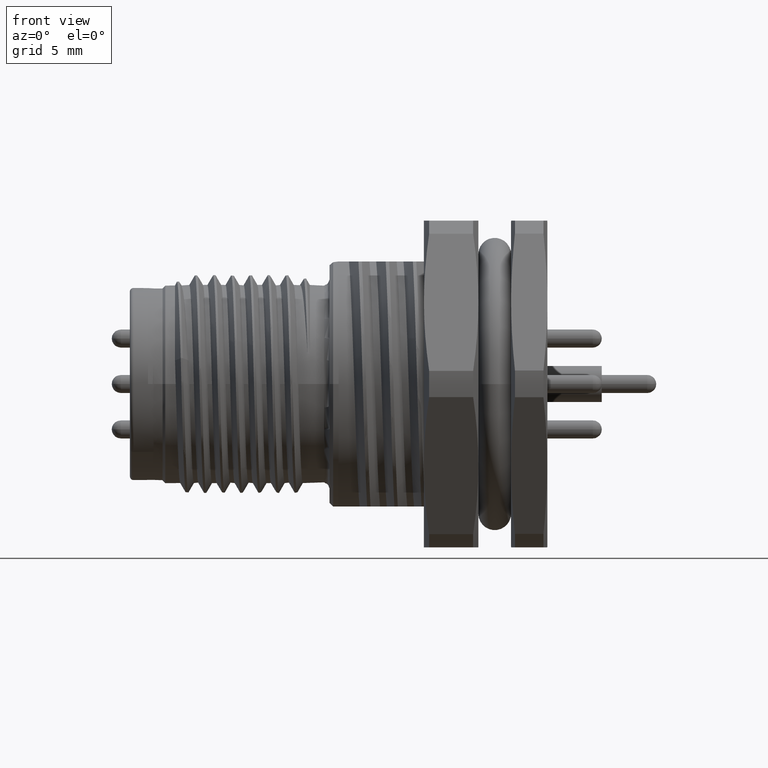
[diagram: clean part render]
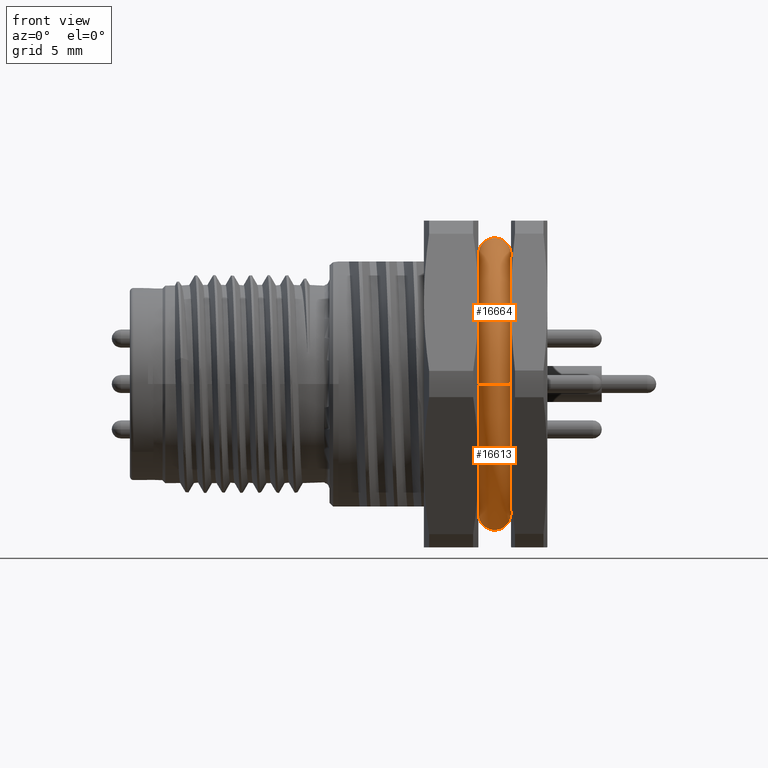
[diagram: same view with one multi-face feature highlighted, each face labeled with its STEP entity id]
A machine part, front view. The highlighted faces form ONE feature: a constant-radius fillet chain: 2 tangent blend faces with common blend radius 0.9 mm. The faces share edges in the B-rep.
Their STEP definitions:
[1] entity #16664 (Torus):
#2965=CARTESIAN_POINT('',(1.76E1,2.357965224510E0,6.75E0));
#2966=CARTESIAN_POINT('',(1.76E1,2.191858609347E0,6.75E0));
#2967=CARTESIAN_POINT('',(1.760992761735E1,1.853701311272E0,6.75E0));
#2968=CARTESIAN_POINT('',(1.764217952114E1,1.317435166930E0,6.75E0));
#2969=CARTESIAN_POINT('',(1.767482033434E1,7.854868227123E-1,6.75E0));
#2970=CARTESIAN_POINT('',(1.769457916165E1,2.612037432342E-1,6.75E0));
#2971=CARTESIAN_POINT('',(1.769456661460E1,-2.619781104003E-1,6.75E0));
#2972=CARTESIAN_POINT('',(1.767476386963E1,-7.865873211982E-1,6.75E0));
#2973=CARTESIAN_POINT('',(1.764210173698E1,-1.318633213740E0,6.75E0));
#2974=CARTESIAN_POINT('',(1.760992576684E1,-1.853876435090E0,6.75E0));
#2975=CARTESIAN_POINT('',(1.76E1,-2.191897801313E0,6.75E0));
#2976=CARTESIAN_POINT('',(1.76E1,-2.357965224510E0,6.75E0));
#3774=CARTESIAN_POINT('',(1.76E1,0.E0,0.E0));
#3775=DIRECTION('',(-1.E0,0.E0,0.E0));
#3776=DIRECTION('',(0.E0,3.297853460854E-1,9.440559440559E-1));
#3777=AXIS2_PLACEMENT_3D('',#3774,#3775,#3776);
#3792=CARTESIAN_POINT('',(1.76E1,0.E0,0.E0));
#3793=DIRECTION('',(-1.E0,0.E0,0.E0));
#3794=DIRECTION('',(0.E0,-9.999995755466E-1,-9.213612749541E-4));
#3795=AXIS2_PLACEMENT_3D('',#3792,#3793,#3794);
#3820=CARTESIAN_POINT('',(1.85E1,-7.149996965156E0,-6.587733115923E-3));
#3821=DIRECTION('',(0.E0,9.213612749545E-4,-9.999995755466E-1));
#3822=DIRECTION('',(9.772208263453E-1,-2.122249238963E-1,-1.955359094541E-4));
#3823=AXIS2_PLACEMENT_3D('',#3820,#3821,#3822);
#3825=CARTESIAN_POINT('',(1.85E1,7.149996965156E0,6.587733115907E-3));
#3826=DIRECTION('',(0.E0,9.213612749522E-4,-9.999995755466E-1));
#3827=DIRECTION('',(-1.E0,2.125707017816E-12,0.E0));
#3828=AXIS2_PLACEMENT_3D('',#3825,#3826,#3827);
#3830=CARTESIAN_POINT('',(1.937949874371E1,-2.390146859511E0,6.941002512579E0));
#3831=CARTESIAN_POINT('',(1.938529836909E1,-2.264937732508E0,6.955874305E0));
#3832=CARTESIAN_POINT('',(1.939366036724E1,-2.009216388611E0,6.984287173030E0));
#3833=CARTESIAN_POINT('',(1.939925506714E1,-1.610125078551E0,7.021275710860E0));
#3834=CARTESIAN_POINT('',(1.939999999789E1,-1.332950135492E0,7.041335176927E0));
#3835=CARTESIAN_POINT('',(1.94E1,-1.191638036306E0,7.049999978482E0));
#3841=CARTESIAN_POINT('',(1.94E1,1.191638036255E0,7.049999978484E0));
#3842=CARTESIAN_POINT('',(1.939999999789E1,1.332946807404E0,7.041335380995E0));
#3843=CARTESIAN_POINT('',(1.939925509529E1,1.610117276785E0,7.021276313646E0));
#3844=CARTESIAN_POINT('',(1.939366063040E1,2.009204784589E0,6.984288371291E0));
#3845=CARTESIAN_POINT('',(1.938529859970E1,2.264932753913E0,6.955874896335E0));
#3846=CARTESIAN_POINT('',(1.937949874371E1,2.390146859511E0,6.941002512579E0));
#3858=CARTESIAN_POINT('',(1.94E1,-1.191638036306E0,7.049999978482E0));
#3859=CARTESIAN_POINT('',(1.940000000533E1,-1.093793323615E0,7.028141698706E0));
#3860=CARTESIAN_POINT('',(1.939523487582E1,-8.973140900182E-1,
6.989207477091E0));
#3861=CARTESIAN_POINT('',(1.938279544032E1,-5.992734440495E-1,
6.947956725367E0));
#3862=CARTESIAN_POINT('',(1.937240715223E1,-2.994474861446E-1,
6.923988535468E0));
#3863=CARTESIAN_POINT('',(1.936849029E1,1.214797918162E-3,6.916224191535E0));
#3864=CARTESIAN_POINT('',(1.937246379981E1,3.014426884699E-1,6.924106062456E0));
#3865=CARTESIAN_POINT('',(1.938284454668E1,6.004047366268E-1,6.948098377343E0));
#3866=CARTESIAN_POINT('',(1.939524039471E1,8.975632667301E-1,6.989262208387E0));
#3867=CARTESIAN_POINT('',(1.940000000533E1,1.093836927975E0,7.028151439835E0));
#3868=CARTESIAN_POINT('',(1.94E1,1.191638036255E0,7.049999978484E0));
#7802=CARTESIAN_POINT('',(1.937949874371E1,0.E0,0.E0));
#7803=DIRECTION('',(-1.E0,0.E0,0.E0));
#7804=DIRECTION('',(0.E0,3.255886175514E-1,9.455115293432E-1));
#7805=AXIS2_PLACEMENT_3D('',#7802,#7803,#7804);
#7812=CARTESIAN_POINT('',(1.937949874371E1,0.E0,0.E0));
#7813=DIRECTION('',(-1.E0,0.E0,0.E0));
#7814=DIRECTION('',(0.E0,-9.999995755466E-1,-9.213612749548E-4));
#7815=AXIS2_PLACEMENT_3D('',#7812,#7813,#7814);
#11191=CARTESIAN_POINT('',(1.76E1,7.149996965158E0,6.587733115910E-3));
#11192=VERTEX_POINT('',#11191);
#11193=CARTESIAN_POINT('',(1.76E1,2.357965224510E0,6.75E0));
#11194=VERTEX_POINT('',#11193);
#11195=CARTESIAN_POINT('',(1.76E1,-7.149996965158E0,-6.587733115921E-3));
#11196=VERTEX_POINT('',#11195);
#11197=CARTESIAN_POINT('',(1.76E1,-2.357965224510E0,6.75E0));
#11198=VERTEX_POINT('',#11197);
#11199=CARTESIAN_POINT('',(1.937949874371E1,7.340999396663E0,
6.763715434415E-3));
#11200=VERTEX_POINT('',#11199);
#11201=CARTESIAN_POINT('',(1.937949874371E1,2.390146859511E0,6.941002512579E0));
#11202=VERTEX_POINT('',#11201);
#11203=VERTEX_POINT('',#3830);
#11204=VERTEX_POINT('',#3835);
#11205=VERTEX_POINT('',#3841);
#11206=CARTESIAN_POINT('',(1.937949874371E1,-7.340999396663E0,
-6.763715434434E-3));
#11207=VERTEX_POINT('',#11206);
#16642=CARTESIAN_POINT('',(1.85E1,0.E0,0.E0));
#16643=DIRECTION('',(-1.E0,0.E0,0.E0));
#16644=DIRECTION('',(0.E0,-9.999995755466E-1,-9.213612749539E-4));
#16645=AXIS2_PLACEMENT_3D('',#16642,#16643,#16644);
#16646=TOROIDAL_SURFACE('',#16645,7.149999999998E0,8.999999999999E-1);
#16648=ORIENTED_EDGE('',*,*,#16647,.F.);
#16650=ORIENTED_EDGE('',*,*,#16649,.F.);
#16652=ORIENTED_EDGE('',*,*,#16651,.F.);
#16654=ORIENTED_EDGE('',*,*,#16653,.F.);
#16655=ORIENTED_EDGE('',*,*,#16597,.T.);
#16656=ORIENTED_EDGE('',*,*,#16624,.T.);
#16657=ORIENTED_EDGE('',*,*,#15436,.F.);
#16658=ORIENTED_EDGE('',*,*,#16579,.T.);
#16659=ORIENTED_EDGE('',*,*,#16609,.T.);
#16661=ORIENTED_EDGE('',*,*,#16660,.F.);
#16662=EDGE_LOOP('',(#16648,#16650,#16652,#16654,#16655,#16656,#16657,#16658,
#16659,#16661));
#16663=FACE_OUTER_BOUND('',#16662,.F.);
#16664=ADVANCED_FACE('',(#16663),#16646,.T.);
#2977=B_SPLINE_CURVE_WITH_KNOTS('',3,(#2965,#2966,#2967,#2968,#2969,#2970,#2971,
#2972,#2973,#2974,#2975,#2976),.UNSPECIFIED.,.F.,.F.,(4,1,1,1,1,1,1,1,1,4),
(0.E0,1.111111111111E-1,2.222222222222E-1,3.333333333333E-1,4.444444444444E-1,
5.555555555556E-1,6.666666666667E-1,7.777777777778E-1,8.888888888889E-1,1.E0),
.UNSPECIFIED.);
#3778=CIRCLE('',#3777,7.15E0);
#3796=CIRCLE('',#3795,7.15E0);
#3824=CIRCLE('',#3823,8.999999999999E-1);
#3829=CIRCLE('',#3828,8.999999999999E-1);
#3836=B_SPLINE_CURVE_WITH_KNOTS('',3,(#3830,#3831,#3832,#3833,#3834,#3835),
.UNSPECIFIED.,.F.,.F.,(4,1,1,4),(0.E0,3.333333333333E-1,6.666666666667E-1,1.E0),
.UNSPECIFIED.);
#3847=B_SPLINE_CURVE_WITH_KNOTS('',3,(#3841,#3842,#3843,#3844,#3845,#3846),
.UNSPECIFIED.,.F.,.F.,(4,1,1,4),(0.E0,3.333333333333E-1,6.666666666667E-1,1.E0),
.UNSPECIFIED.);
#3869=B_SPLINE_CURVE_WITH_KNOTS('',3,(#3858,#3859,#3860,#3861,#3862,#3863,#3864,
#3865,#3866,#3867,#3868),.UNSPECIFIED.,.F.,.F.,(4,1,1,1,1,1,1,1,4),(0.E0,
1.25E-1,2.5E-1,3.75E-1,5.E-1,6.25E-1,7.5E-1,8.75E-1,1.E0),.UNSPECIFIED.);
#7806=CIRCLE('',#7805,7.341002512576E0);
#7816=CIRCLE('',#7815,7.341002512576E0);
#15436=EDGE_CURVE('',#11194,#11198,#2977,.T.);
#16579=EDGE_CURVE('',#11194,#11192,#3778,.T.);
#16597=EDGE_CURVE('',#11207,#11196,#3824,.T.);
#16609=EDGE_CURVE('',#11192,#11200,#3829,.T.);
#16624=EDGE_CURVE('',#11196,#11198,#3796,.T.);
#16647=EDGE_CURVE('',#11205,#11202,#3847,.T.);
#16649=EDGE_CURVE('',#11204,#11205,#3869,.T.);
#16651=EDGE_CURVE('',#11203,#11204,#3836,.T.);
#16653=EDGE_CURVE('',#11207,#11203,#7816,.T.);
#16660=EDGE_CURVE('',#11202,#11200,#7806,.T.);
[2] entity #16613 (Torus):
#2387=CARTESIAN_POINT('',(1.76E1,-2.357965224510E0,-6.75E0));
#2388=CARTESIAN_POINT('',(1.76E1,-2.191858609347E0,-6.75E0));
#2389=CARTESIAN_POINT('',(1.760992761735E1,-1.853701311272E0,-6.75E0));
#2390=CARTESIAN_POINT('',(1.764217952114E1,-1.317435166930E0,-6.75E0));
#2391=CARTESIAN_POINT('',(1.767482033434E1,-7.854868227123E-1,-6.75E0));
#2392=CARTESIAN_POINT('',(1.769457916165E1,-2.612037432342E-1,-6.75E0));
#2393=CARTESIAN_POINT('',(1.769456661460E1,2.619781104003E-1,-6.75E0));
#2394=CARTESIAN_POINT('',(1.767476386963E1,7.865873211982E-1,-6.75E0));
#2395=CARTESIAN_POINT('',(1.764210173698E1,1.318633213740E0,-6.75E0));
#2396=CARTESIAN_POINT('',(1.760992576684E1,1.853876435090E0,-6.75E0));
#2397=CARTESIAN_POINT('',(1.76E1,2.191897801313E0,-6.75E0));
#2398=CARTESIAN_POINT('',(1.76E1,2.357965224510E0,-6.75E0));
#3769=CARTESIAN_POINT('',(1.76E1,0.E0,0.E0));
#3770=DIRECTION('',(-1.E0,0.E0,0.E0));
#3771=DIRECTION('',(0.E0,9.999995755466E-1,9.213612749524E-4));
#3772=AXIS2_PLACEMENT_3D('',#3769,#3770,#3771);
#3783=CARTESIAN_POINT('',(1.76E1,0.E0,0.E0));
#3784=DIRECTION('',(-1.E0,0.E0,0.E0));
#3785=DIRECTION('',(0.E0,-3.297853460854E-1,-9.440559440559E-1));
#3786=AXIS2_PLACEMENT_3D('',#3783,#3784,#3785);
#3820=CARTESIAN_POINT('',(1.85E1,-7.149996965156E0,-6.587733115923E-3));
#3821=DIRECTION('',(0.E0,9.213612749545E-4,-9.999995755466E-1));
#3822=DIRECTION('',(9.772208263453E-1,-2.122249238963E-1,-1.955359094541E-4));
#3823=AXIS2_PLACEMENT_3D('',#3820,#3821,#3822);
#3825=CARTESIAN_POINT('',(1.85E1,7.149996965156E0,6.587733115907E-3));
#3826=DIRECTION('',(0.E0,9.213612749522E-4,-9.999995755466E-1));
#3827=DIRECTION('',(-1.E0,2.125707017816E-12,0.E0));
#3828=AXIS2_PLACEMENT_3D('',#3825,#3826,#3827);
#7753=CARTESIAN_POINT('',(1.937949874371E1,2.390146859511E0,-6.941002512579E0));
#7754=CARTESIAN_POINT('',(1.938529836909E1,2.264937732508E0,-6.955874305E0));
#7755=CARTESIAN_POINT('',(1.939366036724E1,2.009216388611E0,-6.984287173030E0));
#7756=CARTESIAN_POINT('',(1.939925506714E1,1.610125078551E0,-7.021275710860E0));
#7757=CARTESIAN_POINT('',(1.939999999789E1,1.332950135492E0,-7.041335176927E0));
#7758=CARTESIAN_POINT('',(1.94E1,1.191638036306E0,-7.049999978482E0));
#7764=CARTESIAN_POINT('',(1.94E1,-1.191638036255E0,-7.049999978484E0));
#7765=CARTESIAN_POINT('',(1.939999999789E1,-1.332946807404E0,
-7.041335380995E0));
#7766=CARTESIAN_POINT('',(1.939925509529E1,-1.610117276785E0,
-7.021276313646E0));
#7767=CARTESIAN_POINT('',(1.939366063040E1,-2.009204784589E0,
-6.984288371291E0));
#7768=CARTESIAN_POINT('',(1.938529859970E1,-2.264932753913E0,
-6.955874896335E0));
#7769=CARTESIAN_POINT('',(1.937949874371E1,-2.390146859511E0,
-6.941002512579E0));
#7775=CARTESIAN_POINT('',(1.94E1,1.191638036306E0,-7.049999978482E0));
#7776=CARTESIAN_POINT('',(1.940000000533E1,1.093793323615E0,-7.028141698706E0));
#7777=CARTESIAN_POINT('',(1.939523487582E1,8.973140900182E-1,
-6.989207477091E0));
#7778=CARTESIAN_POINT('',(1.938279544032E1,5.992734440494E-1,
-6.947956725367E0));
#7779=CARTESIAN_POINT('',(1.937240715223E1,2.994474861446E-1,
-6.923988535468E0));
#7780=CARTESIAN_POINT('',(1.936849029E1,-1.214797918166E-3,-6.916224191535E0));
#7781=CARTESIAN_POINT('',(1.937246379981E1,-3.014426884699E-1,
-6.924106062456E0));
#7782=CARTESIAN_POINT('',(1.938284454668E1,-6.004047366268E-1,
-6.948098377343E0));
#7783=CARTESIAN_POINT('',(1.939524039471E1,-8.975632667301E-1,
-6.989262208387E0));
#7784=CARTESIAN_POINT('',(1.940000000533E1,-1.093836927975E0,
-7.028151439835E0));
#7785=CARTESIAN_POINT('',(1.94E1,-1.191638036255E0,-7.049999978484E0));
#7791=CARTESIAN_POINT('',(1.937949874371E1,0.E0,0.E0));
#7792=DIRECTION('',(-1.E0,0.E0,0.E0));
#7793=DIRECTION('',(0.E0,9.999995755466E-1,9.213612749522E-4));
#7794=AXIS2_PLACEMENT_3D('',#7791,#7792,#7793);
#7807=CARTESIAN_POINT('',(1.937949874371E1,0.E0,0.E0));
#7808=DIRECTION('',(-1.E0,0.E0,0.E0));
#7809=DIRECTION('',(0.E0,-3.255886175514E-1,-9.455115293432E-1));
#7810=AXIS2_PLACEMENT_3D('',#7807,#7808,#7809);
#11185=VERTEX_POINT('',#7753);
#11186=VERTEX_POINT('',#7758);
#11187=VERTEX_POINT('',#7764);
#11188=VERTEX_POINT('',#7769);
#11189=VERTEX_POINT('',#2387);
#11190=VERTEX_POINT('',#2398);
#11191=CARTESIAN_POINT('',(1.76E1,7.149996965158E0,6.587733115910E-3));
#11192=VERTEX_POINT('',#11191);
#11195=CARTESIAN_POINT('',(1.76E1,-7.149996965158E0,-6.587733115921E-3));
#11196=VERTEX_POINT('',#11195);
#11199=CARTESIAN_POINT('',(1.937949874371E1,7.340999396663E0,
6.763715434415E-3));
#11200=VERTEX_POINT('',#11199);
#11206=CARTESIAN_POINT('',(1.937949874371E1,-7.340999396663E0,
-6.763715434434E-3));
#11207=VERTEX_POINT('',#11206);
#16588=CARTESIAN_POINT('',(1.85E1,0.E0,0.E0));
#16589=DIRECTION('',(-1.E0,0.E0,0.E0));
#16590=DIRECTION('',(0.E0,-9.999995755466E-1,-9.213612749539E-4));
#16591=AXIS2_PLACEMENT_3D('',#16588,#16589,#16590);
#16592=TOROIDAL_SURFACE('',#16591,7.149999999998E0,8.999999999999E-1);
#16593=ORIENTED_EDGE('',*,*,#16577,.T.);
#16594=ORIENTED_EDGE('',*,*,#14701,.F.);
#16596=ORIENTED_EDGE('',*,*,#16595,.T.);
#16598=ORIENTED_EDGE('',*,*,#16597,.F.);
#16600=ORIENTED_EDGE('',*,*,#16599,.F.);
#16602=ORIENTED_EDGE('',*,*,#16601,.F.);
#16604=ORIENTED_EDGE('',*,*,#16603,.F.);
#16606=ORIENTED_EDGE('',*,*,#16605,.F.);
#16608=ORIENTED_EDGE('',*,*,#16607,.F.);
#16610=ORIENTED_EDGE('',*,*,#16609,.F.);
#16611=EDGE_LOOP('',(#16593,#16594,#16596,#16598,#16600,#16602,#16604,#16606,
#16608,#16610));
#16612=FACE_OUTER_BOUND('',#16611,.F.);
#16613=ADVANCED_FACE('',(#16612),#16592,.T.);
#2399=B_SPLINE_CURVE_WITH_KNOTS('',3,(#2387,#2388,#2389,#2390,#2391,#2392,#2393,
#2394,#2395,#2396,#2397,#2398),.UNSPECIFIED.,.F.,.F.,(4,1,1,1,1,1,1,1,1,4),
(0.E0,1.111111111111E-1,2.222222222222E-1,3.333333333333E-1,4.444444444444E-1,
5.555555555556E-1,6.666666666667E-1,7.777777777778E-1,8.888888888889E-1,1.E0),
.UNSPECIFIED.);
#3773=CIRCLE('',#3772,7.15E0);
#3787=CIRCLE('',#3786,7.15E0);
#3824=CIRCLE('',#3823,8.999999999999E-1);
#3829=CIRCLE('',#3828,8.999999999999E-1);
#7759=B_SPLINE_CURVE_WITH_KNOTS('',3,(#7753,#7754,#7755,#7756,#7757,#7758),
.UNSPECIFIED.,.F.,.F.,(4,1,1,4),(0.E0,3.333333333333E-1,6.666666666667E-1,1.E0),
.UNSPECIFIED.);
#7770=B_SPLINE_CURVE_WITH_KNOTS('',3,(#7764,#7765,#7766,#7767,#7768,#7769),
.UNSPECIFIED.,.F.,.F.,(4,1,1,4),(0.E0,3.333333333333E-1,6.666666666667E-1,1.E0),
.UNSPECIFIED.);
#7786=B_SPLINE_CURVE_WITH_KNOTS('',3,(#7775,#7776,#7777,#7778,#7779,#7780,#7781,
#7782,#7783,#7784,#7785),.UNSPECIFIED.,.F.,.F.,(4,1,1,1,1,1,1,1,4),(0.E0,
1.25E-1,2.5E-1,3.75E-1,5.E-1,6.25E-1,7.5E-1,8.75E-1,1.E0),.UNSPECIFIED.);
#7795=CIRCLE('',#7794,7.341002512576E0);
#7811=CIRCLE('',#7810,7.341002512576E0);
#14701=EDGE_CURVE('',#11189,#11190,#2399,.T.);
#16577=EDGE_CURVE('',#11192,#11190,#3773,.T.);
#16595=EDGE_CURVE('',#11189,#11196,#3787,.T.);
#16597=EDGE_CURVE('',#11207,#11196,#3824,.T.);
#16599=EDGE_CURVE('',#11188,#11207,#7811,.T.);
#16601=EDGE_CURVE('',#11187,#11188,#7770,.T.);
#16603=EDGE_CURVE('',#11186,#11187,#7786,.T.);
#16605=EDGE_CURVE('',#11185,#11186,#7759,.T.);
#16607=EDGE_CURVE('',#11200,#11185,#7795,.T.);
#16609=EDGE_CURVE('',#11192,#11200,#3829,.T.);